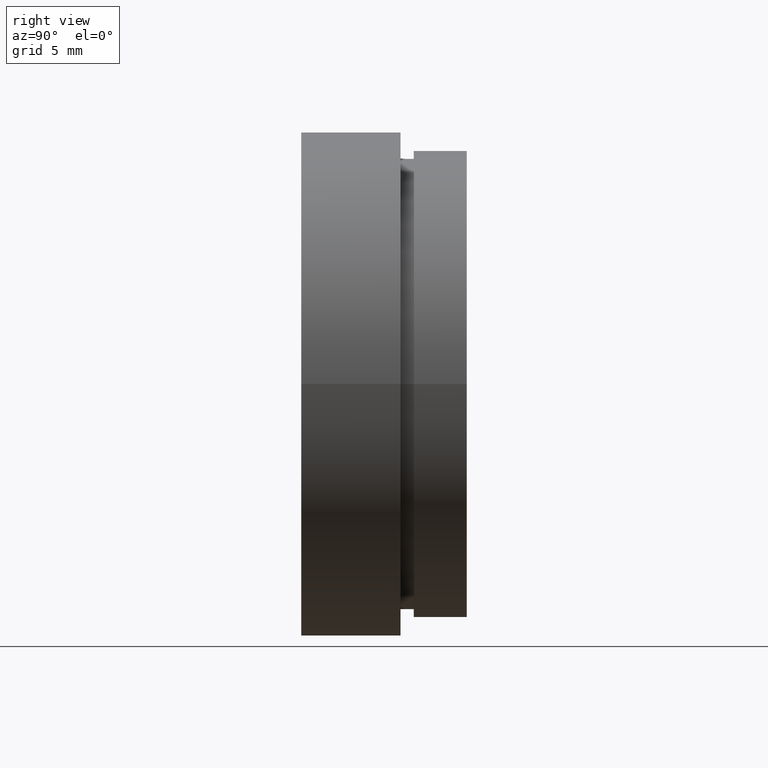
[diagram: clean part render]
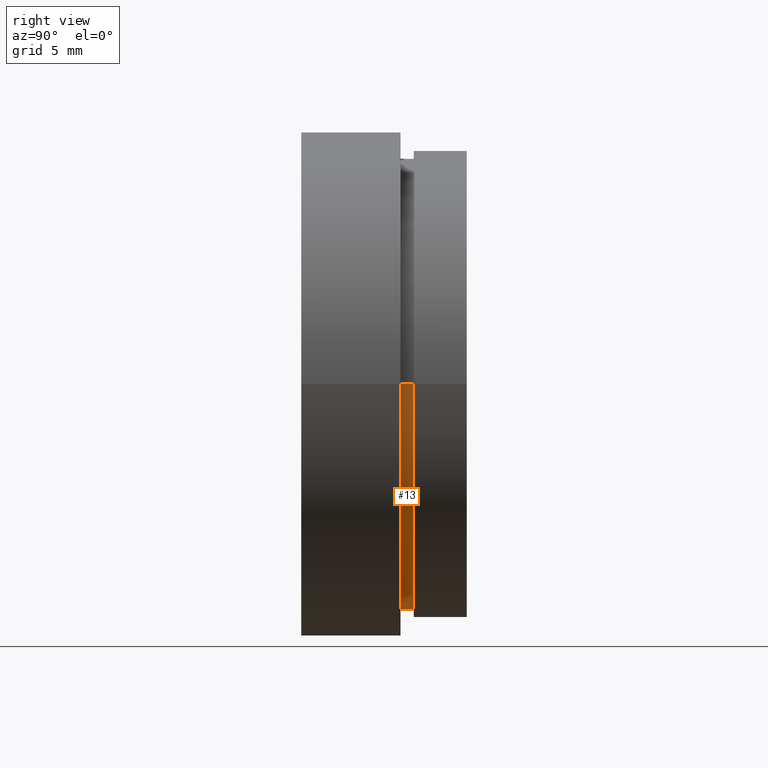
[diagram: same view with one face highlighted and labeled with its STEP entity id]
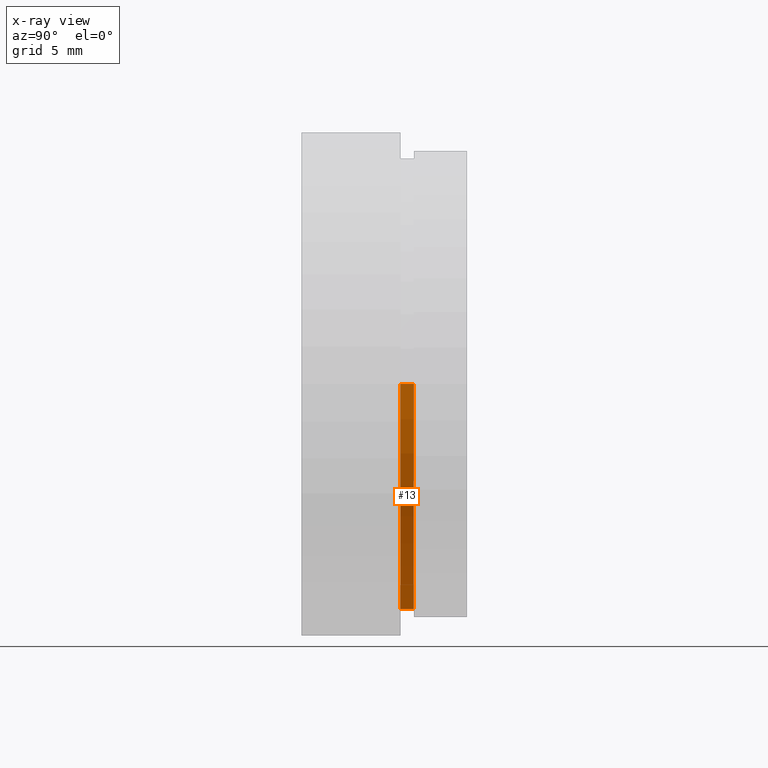
[diagram: x-ray of the same camera — body ghosted, the highlighted face saturated]
A machine part, right view. The second image highlights one B-rep face of the part: STEP entity #13.
The next image is the same camera in x-ray: the body ghosted, the highlighted face saturated — about 0% of this face is hidden behind the body in this view.
In plain terms, the highlighted cylindrical surface (partial cylindrical patch) has radius 17 mm, axis along (-0, 1, -0).
Its self-contained STEP definition (entity closure, byte-faithful):
#5 = CARTESIAN_POINT ( 'NONE',  ( 0.0000000000000000000, 16.88601823708207700, 0.0000000000000000000 ) ) ;
#13 = ADVANCED_FACE ( 'NONE', ( #67 ), #275, .T. ) ;
#15 = VECTOR ( 'NONE', #388, 1000.000000000000000 ) ;
#31 = EDGE_CURVE ( 'NONE', #305, #298, #176, .T. ) ;
#33 = EDGE_CURVE ( 'NONE', #298, #348, #312, .T. ) ;
#34 = CARTESIAN_POINT ( 'NONE',  ( 1.149455719078122700E-015, 7.499999999999998200, 0.0000000000000000000 ) ) ;
#42 = EDGE_LOOP ( 'NONE', ( #357, #137, #104, #394 ) ) ;
#67 = FACE_OUTER_BOUND ( 'NONE', #42, .T. ) ;
#72 = AXIS2_PLACEMENT_3D ( 'NONE', #286, #316, #74 ) ;
#74 = DIRECTION ( 'NONE',  ( -1.000000000000000000, -1.020425574104004100E-016, 0.0000000000000000000 ) ) ;
#93 = CARTESIAN_POINT ( 'NONE',  ( 17.00000000000000000, 8.500000000000000000, 2.081899558550500300E-015 ) ) ;
#104 = ORIENTED_EDGE ( 'NONE', *, *, #240, .T. ) ;
#137 = ORIENTED_EDGE ( 'NONE', *, *, #378, .T. ) ;
#171 = DIRECTION ( 'NONE',  ( -1.224646799147351000E-016, 1.000000000000000000, -0.0000000000000000000 ) ) ;
#172 = CIRCLE ( 'NONE', #425, 17.00000000000000000 ) ;
#176 = LINE ( 'NONE', #419, #326 ) ;
#204 = DIRECTION ( 'NONE',  ( -1.000000000000000000, -1.020425574104004100E-016, 0.0000000000000000000 ) ) ;
#205 = DIRECTION ( 'NONE',  ( -1.224646799147351000E-016, 1.000000000000000000, -0.0000000000000000000 ) ) ;
#216 = DIRECTION ( 'NONE',  ( -1.224646799147351000E-016, 1.000000000000000000, -0.0000000000000000000 ) ) ;
#217 = VERTEX_POINT ( 'NONE', #385 ) ;
#219 = CARTESIAN_POINT ( 'NONE',  ( -17.00000000000000000, 16.88601823708207300, 0.0000000000000000000 ) ) ;
#240 = EDGE_CURVE ( 'NONE', #217, #348, #309, .T. ) ;
#275 = CYLINDRICAL_SURFACE ( 'NONE', #346, 17.00000000000000000 ) ;
#278 = DIRECTION ( 'NONE',  ( -1.000000000000000000, -2.040851148208008200E-016, 0.0000000000000000000 ) ) ;
#286 = CARTESIAN_POINT ( 'NONE',  ( 1.026991039163387700E-015, 8.499999999999998200, 0.0000000000000000000 ) ) ;
#298 = VERTEX_POINT ( 'NONE', #93 ) ;
#305 = VERTEX_POINT ( 'NONE', #429 ) ;
#309 = LINE ( 'NONE', #219, #15 ) ;
#312 = CIRCLE ( 'NONE', #72, 17.00000000000000000 ) ;
#316 = DIRECTION ( 'NONE',  ( -1.224646799147351000E-016, 1.000000000000000000, -0.0000000000000000000 ) ) ;
#326 = VECTOR ( 'NONE', #216, 1000.000000000000000 ) ;
#329 = CARTESIAN_POINT ( 'NONE',  ( -17.00000000000000000, 8.499999999999996400, 0.0000000000000000000 ) ) ;
#346 = AXIS2_PLACEMENT_3D ( 'NONE', #5, #171, #278 ) ;
#348 = VERTEX_POINT ( 'NONE', #329 ) ;
#357 = ORIENTED_EDGE ( 'NONE', *, *, #31, .F. ) ;
#378 = EDGE_CURVE ( 'NONE', #305, #217, #172, .T. ) ;
#385 = CARTESIAN_POINT ( 'NONE',  ( -17.00000000000000000, 7.499999999999996400, 0.0000000000000000000 ) ) ;
#388 = DIRECTION ( 'NONE',  ( -1.224646799147351000E-016, 1.000000000000000000, -0.0000000000000000000 ) ) ;
#394 = ORIENTED_EDGE ( 'NONE', *, *, #33, .F. ) ;
#419 = CARTESIAN_POINT ( 'NONE',  ( 17.00000000000000000, 16.88601823708208000, 2.081899558550500300E-015 ) ) ;
#425 = AXIS2_PLACEMENT_3D ( 'NONE', #34, #205, #204 ) ;
#429 = CARTESIAN_POINT ( 'NONE',  ( 17.00000000000000000, 7.500000000000000000, 2.081899558550500300E-015 ) ) ;